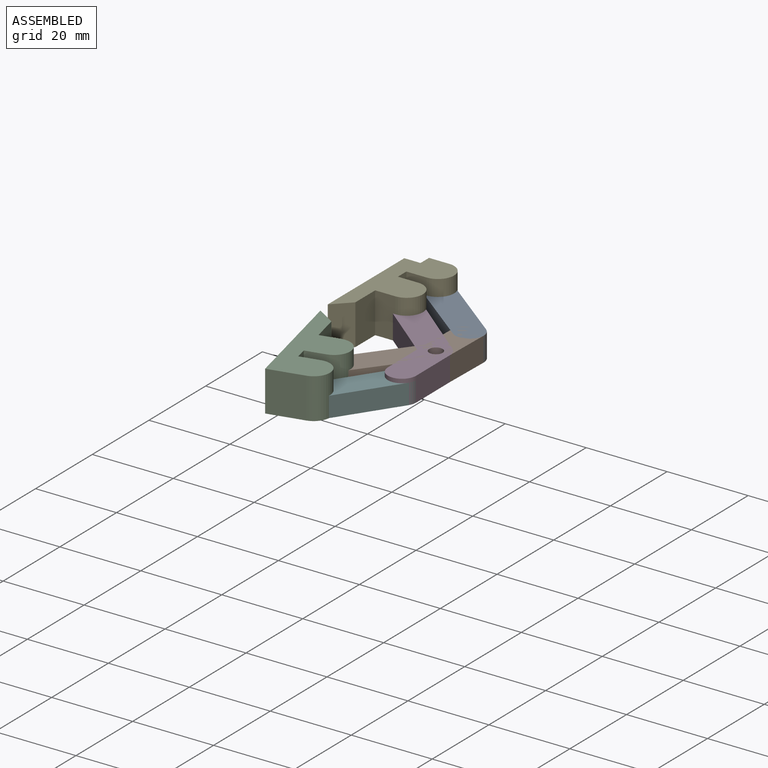
[diagram: assembled view]
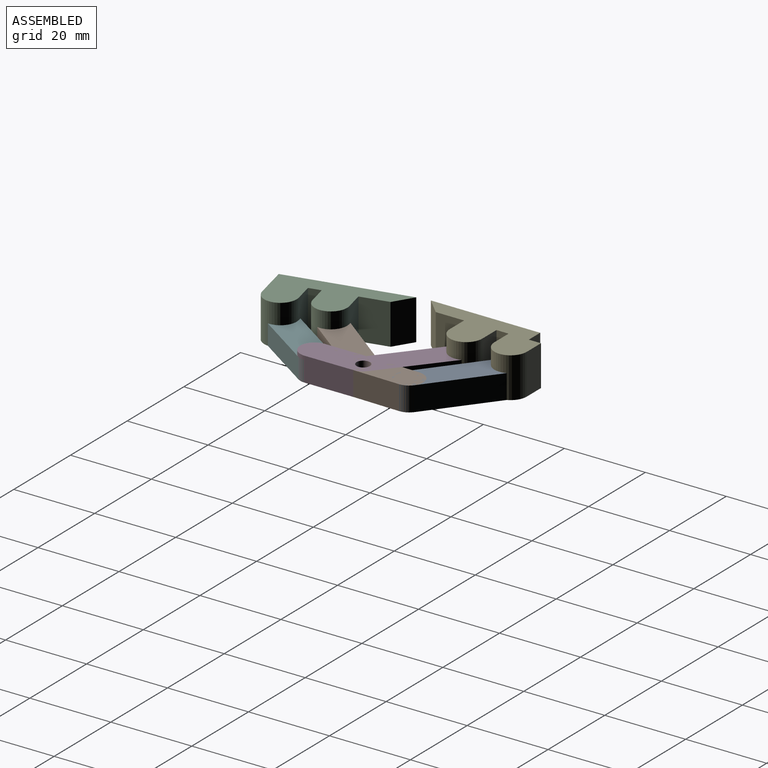
[diagram: assembled view, second angle]
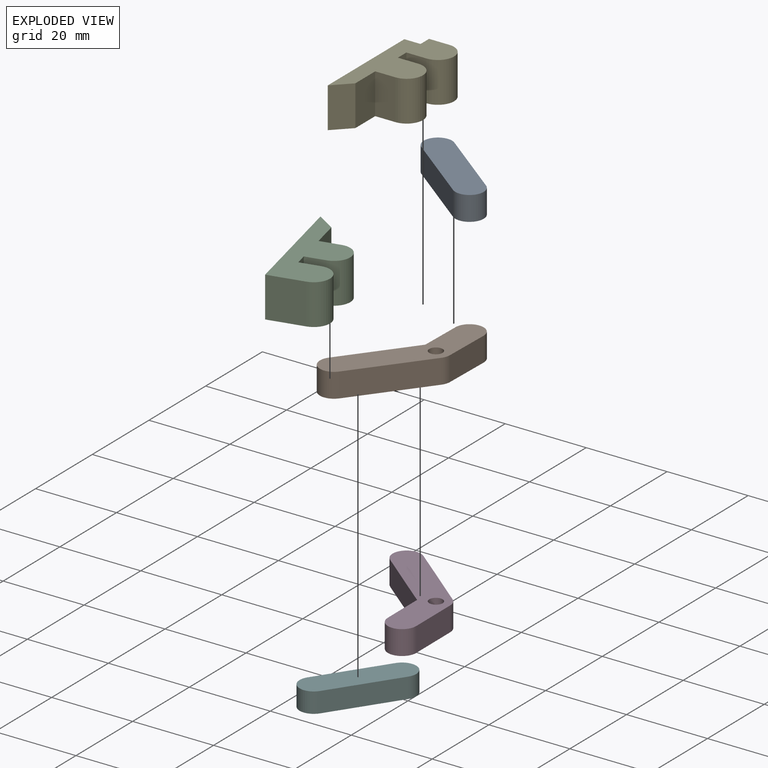
[diagram: exploded view]
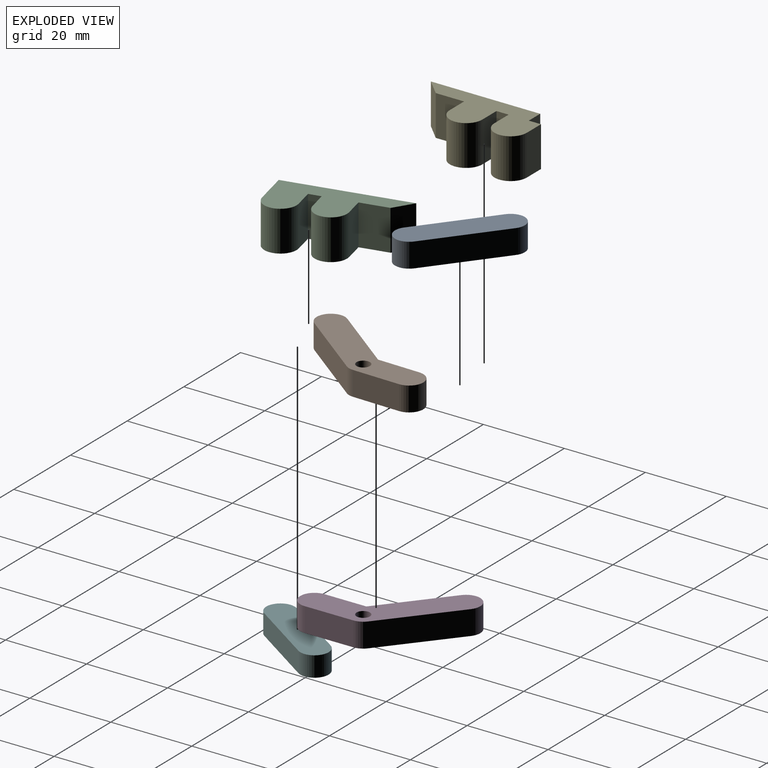
[diagram: exploded view, second angle]
ASSEMBLY  parts=6 mates=7
PART A: 6 faces, bbox 24.5x19.5x6 mm
  f0: plane 17.5x12.5mm, normal (-0.58,0.81,0), area 129mm2, adj f1,f3,f4,f5
  f1: cylinder r=3.5mm len=6.35mm, axis (0,0,-1), area 66mm2, adj f0,f2,f4,f5
  f2: plane 17.5x12.5mm, normal (0.58,-0.81,0), area 129mm2, adj f1,f3,f4,f5
  f3: cylinder r=3.5mm len=6.35mm, axis (0,0,-1), area 66mm2, adj f0,f2,f4,f5
  f4: plane 24.5x19.5mm, normal (0,0,1), area 189mm2, adj f0,f1,f2,f3
  f5: plane 24.5x19.5mm, normal (0,0,-1), area 189mm2, adj f0,f1,f2,f3
PART B: 10 faces, bbox 19x36.5x6 mm
  f0: plane 17.05x11.37mm, normal (-0.83,0.55,0), area 122.9mm2, adj f1,f6,f8,f9
  f1: cylinder r=3.5mm len=6.41mm, axis (0,0,-1), area 66mm2, adj f0,f2,f8,f9
  f2: plane 18x12mm, normal (0.83,-0.55,0), area 129.8mm2, adj f1,f3,f8,f9
  f3: cylinder r=3.5mm len=6mm, axis (0,0,-1), area 13.3mm2, adj f2,f4,f8,f9
  f4: plane 11.5x6mm, normal (1,0.04,0), area 69.1mm2, adj f3,f5,f8,f9
  f5: cylinder r=3.5mm len=7mm, axis (0,0,-1), area 66mm2, adj f4,f6,f8,f9
  f6: plane 10.36x6mm, normal (-1,-0.04,0), area 62.2mm2, adj f0,f5,f8,f9
  f7: cylinder r=1.65mm len=6mm, axis (0,0,-1), area 62.2mm2, adj f8,f9
  f8: plane 36.5x19mm, normal (0,0,1), area 261.8mm2, adj f0,f1,f2,f3,f4,f5,f6,f7
  f9: plane 36.5x19mm, normal (0,0,-1), area 261.8mm2, adj f0,f1,f2,f3,f4,f5,f6,f7
PART C: 12 faces, bbox 30x13x10 mm
  f0: plane 10x5mm, normal (-1,0,0), area 50mm2, adj f1,f9,f10,f11
  f1: plane 10x3mm, normal (0,1,0), area 30mm2, adj f0,f2,f10,f11
  f2: plane 10x5mm, normal (1,0,0), area 50mm2, adj f1,f3,f10,f11
  f3: cylinder r=4mm len=10mm, axis (0,0,-1), area 125.7mm2, adj f2,f4,f10,f11
  f4: plane 10x5mm, normal (-1,0,0), area 50mm2, adj f3,f5,f10,f11
  f5: plane 10x7mm, normal (0,1,0), area 70mm2, adj f4,f6,f10,f11
  f6: plane 10x4mm, normal (-0.71,0.71,0), area 56.6mm2, adj f5,f7,f10,f11
  f7: plane 30x10mm, normal (0,-1,0), area 300mm2, adj f6,f8,f10,f11
  f8: plane 10x9mm, normal (1,0,0), area 90mm2, adj f7,f9,f10,f11
  f9: cylinder r=4mm len=10mm, axis (0,0,-1), area 125.7mm2, adj f0,f8,f10,f11
  f10: plane 30x13mm, normal (0,0,1), area 242.3mm2, adj f0,f1,f2,f3,f4,f5,f6,f7
  f11: plane 30x13mm, normal (0,0,-1), area 242.3mm2, adj f0,f1,f2,f3,f4,f5,f6,f7
PART D: 10 faces, bbox 36.5x19x6 mm
  f0: plane 16.62x11.08mm, normal (0.55,-0.83,0), area 119.9mm2, adj f1,f6,f8,f9
  f1: plane 9.92x6mm, normal (-0.29,-0.96,0), area 62.2mm2, adj f0,f2,f8,f9
  f2: cylinder r=3.5mm len=6.85mm, axis (0,0,-1), area 66mm2, adj f1,f3,f8,f9
  f3: plane 11.5x6mm, normal (0.29,0.96,0), area 72.1mm2, adj f2,f4,f8,f9
  f4: cylinder r=3.5mm len=6mm, axis (0,0,-1), area 18.6mm2, adj f3,f5,f8,f9
  f5: plane 18x12mm, normal (-0.55,0.83,0), area 129.8mm2, adj f4,f6,f8,f9
  f6: cylinder r=3.5mm len=6.41mm, axis (0,0,-1), area 66mm2, adj f0,f5,f8,f9
  f7: cylinder r=1.65mm len=6mm, axis (0,0,-1), area 62.2mm2, adj f8,f9
  f8: plane 36.5x19mm, normal (0,0,1), area 265.1mm2, adj f0,f1,f2,f3,f4,f5,f6,f7
  f9: plane 36.5x19mm, normal (0,0,-1), area 265.1mm2, adj f0,f1,f2,f3,f4,f5,f6,f7
PART E: 14 faces, bbox 13x30x10 mm
  f0: plane 10x5mm, normal (0,1,0), area 50mm2, adj f1,f11,f12,f13
  f1: plane 10x3mm, normal (1,0,0), area 30mm2, adj f0,f2,f12,f13
  f2: plane 10x5mm, normal (0,-1,0), area 50mm2, adj f1,f3,f12,f13
  f3: cylinder r=4mm len=10mm, axis (0,0,-1), area 125.7mm2, adj f2,f4,f12,f13
  f4: plane 10x5mm, normal (0,1,0), area 50mm2, adj f3,f5,f12,f13
  f5: plane 10x3mm, normal (-1,0,0), area 30mm2, adj f4,f6,f12,f13
  f6: plane 10x4mm, normal (0,1,0), area 40mm2, adj f5,f7,f12,f13
  f7: plane 27x10mm, normal (-1,0,0), area 270mm2, adj f6,f8,f12,f13
  f8: plane 10x4mm, normal (0.71,-0.71,0), area 56.6mm2, adj f7,f9,f12,f13
  f9: plane 10x7mm, normal (1,0,0), area 70mm2, adj f8,f10,f12,f13
  f10: plane 10x5mm, normal (0,-1,0), area 50mm2, adj f9,f11,f12,f13
  f11: cylinder r=4mm len=10mm, axis (0,0,-1), area 125.7mm2, adj f0,f10,f12,f13
  f12: plane 30x13mm, normal (0,0,1), area 230.3mm2, adj f0,f1,f2,f3,f4,f5,f6,f7
  f13: plane 30x13mm, normal (0,0,-1), area 230.3mm2, adj f0,f1,f2,f3,f4,f5,f6,f7
PART F: 6 faces, bbox 19.5x21.5x5 mm
  f0: plane 14.5x12.5mm, normal (0.76,-0.65,0), area 95.7mm2, adj f1,f3,f4,f5
  f1: cylinder r=3.5mm len=6.15mm, axis (0,0,-1), area 55mm2, adj f0,f2,f4,f5
  f2: plane 14.5x12.5mm, normal (-0.76,0.65,0), area 95.7mm2, adj f1,f3,f4,f5
  f3: cylinder r=3.5mm len=6.15mm, axis (0,0,-1), area 55mm2, adj f0,f2,f4,f5
  f4: plane 21.5x19.5mm, normal (0,0,1), area 172.5mm2, adj f0,f1,f2,f3
  f5: plane 21.5x19.5mm, normal (0,0,-1), area 172.5mm2, adj f0,f1,f2,f3
PLACE A rot(axis=(0,0,-1),73.2deg) t=(-29.24,17.81,5.23)mm
PLACE B rot(axis=(0,0,-1),3.7deg) t=(-10.97,-35.31,5.23)mm
PLACE C rot(axis=(0,0,-1),76.9deg) t=(-10.32,-12.41,5.23)mm
PLACE D rot(axis=(0,0,-1),72.9deg) t=(-18.73,9.84,5.23)mm
PLACE E t=(-7.87,-11.45,5.23)mm fixed
PLACE F rot(axis=(0,0,1),6.8deg) t=(-17.13,-50.02,5.23)mm
MATE revolute D.f4 <-> B.f3  axis (0,0,-1) through (17.9,-7.11,5.23)mm
MATE revolute A.f1 <-> E.f3  axis (0,0,-1) through (1.13,17.55,5.23)mm
MATE revolute D.f6 <-> E.f11  axis (0,0,-1) through (1.13,6.55,5.23)mm
MATE revolute B.f5 <-> A.f3  axis (0,0,-1) through (18.14,4.4,5.23)mm
MATE revolute F.f1 <-> D.f2  axis (0,0,-1) through (17.95,-19.13,5.23)mm
MATE revolute C.f3 <-> B.f1  axis (0,0,-1) through (4.77,-24.3,5.23)mm
MATE revolute F.f3 <-> C.f9  axis (0,0,-1) through (7.26,-35.02,5.23)mm
